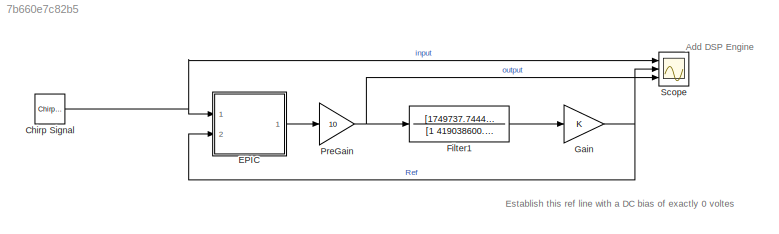
MODEL slx_7b660e7c82b5
KIND model
CONFIG AbsTol = auto
CONFIG EnableMultiTasking = on
CONFIG FixedStep = 0.0001
CONFIG MaxStep = auto
CONFIG MinStep = auto
CONFIG RelTol = 1e-3
CONFIG SampleTimeConstraint = Unconstrained
CONFIG Solver = ode15s
CONFIG SolverName = ode15s
CONFIG StartTime = 0.0
CONFIG StopTime = 100
BLOCK [Reference] Chirp Signal  REF=simulink/Sources/Chirp Signal
  Ports = [0, 1]
  SourceBlock = simulink/Sources/Chirp Signal
  SourceProductBaseCode = SL
  SourceProductName = Simulink
  SourceType = chirp
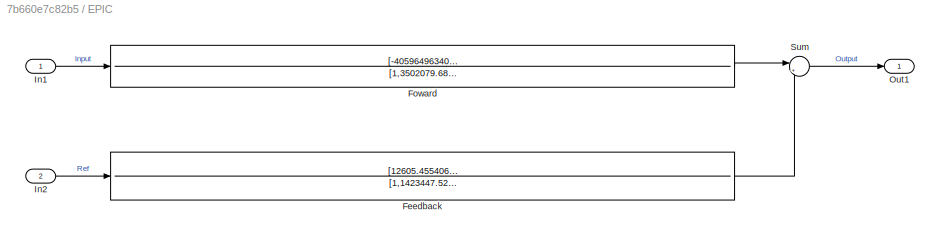
BLOCK [SubSystem] EPIC
  Ports = [2, 1]
  RequestExecContextInheritance = off
  ShowPortLabels = SignalName
BLOCK [TransferFcn] EPIC/Feedback
  Denominator = [1,1423447.52999193,9421519136.03560,6422247005442.77,51913333436888.3,69117764201530.7]
  Numerator = [12605.4554063995,23229713663.4924,17234152953470.8,4398216306223.24,3018119162321.11]
BLOCK [TransferFcn] EPIC/Foward
  Denominator = [1,3502079.68268747,5589807862084.53,40022776635817.3,58077323621970.0]
  Numerator = [-40596496340164.1,-10055203430225.6,7778571084474.48]
BLOCK [Inport] EPIC/In1
  IconDisplay = Port number
BLOCK [Inport] EPIC/In2
  IconDisplay = Port number
  Port = 2
BLOCK [Outport] EPIC/Out1
  IconDisplay = Port number
BLOCK [Sum] EPIC/Sum
  IconShape = round
  InputSameDT = off
  Inputs = |++
  OutDataTypeStr = Inherit: Inherit via internal rule
  OutMax = [100]
  OutMin = [-100]
  Ports = [2, 1]
  SaturateOnIntegerOverflow = off
BLOCK [TransferFcn] Filter1
  Denominator = [1 419038600.664162 35729810621.7467 56970589876168.1]
  Numerator = [1749737.74447626 456544220.2994 111217549558.059 15268939056263.4]
BLOCK [Gain] Gain
BLOCK [Gain] PreGain
  Gain = 10
  OutMax = 5
  OutMin = -5
BLOCK [Scope] Scope
  Floating = off
  NumInputPorts = 3
  Ports = [3]
  ScopeSpecificationString = Simulink.scopes.TimeScopeBlockCfg('CurrentConfiguration', extmgr.ConfigurationSet(extmgr.Configuration('Core','General UI',true),extmgr.Configuration('Core','Source UI',true),extmgr.Configuration('Sources','WiredSimulink',true),extmgr.Configuration('Visuals','Time Domain',true,'SerializedDisplays',{struct('MinYLimReal','-1.25','MaxYLimReal','1.24997','YLabelReal','','MinYLimMag','0.00000','MaxYLim...<+2540ch>
ANNOTATION (root): Add DSP Engine
ANNOTATION (root): Establish this ref line with a DC bias of exactly 0 voltes
NET Chirp Signal:1 -> EPIC:1, Scope:1
LINE EPIC/Feedback:1 -> EPIC/Sum:2
LINE EPIC/Foward:1 -> EPIC/Sum:1
LINE EPIC/In1:1 -> EPIC/Foward:1
LINE EPIC/In2:1 -> EPIC/Feedback:1
LINE EPIC/Sum:1 -> EPIC/Out1:1
LINE EPIC:1 -> PreGain:1
LINE Filter1:1 -> Gain:1
NET Gain:1 -> EPIC:2, Scope:2
NET PreGain:1 -> Filter1:1, Scope:3
note: NET lines group one-source signal fan-out (src -> all destinations, sorted); 1:1 wires keep LINE
